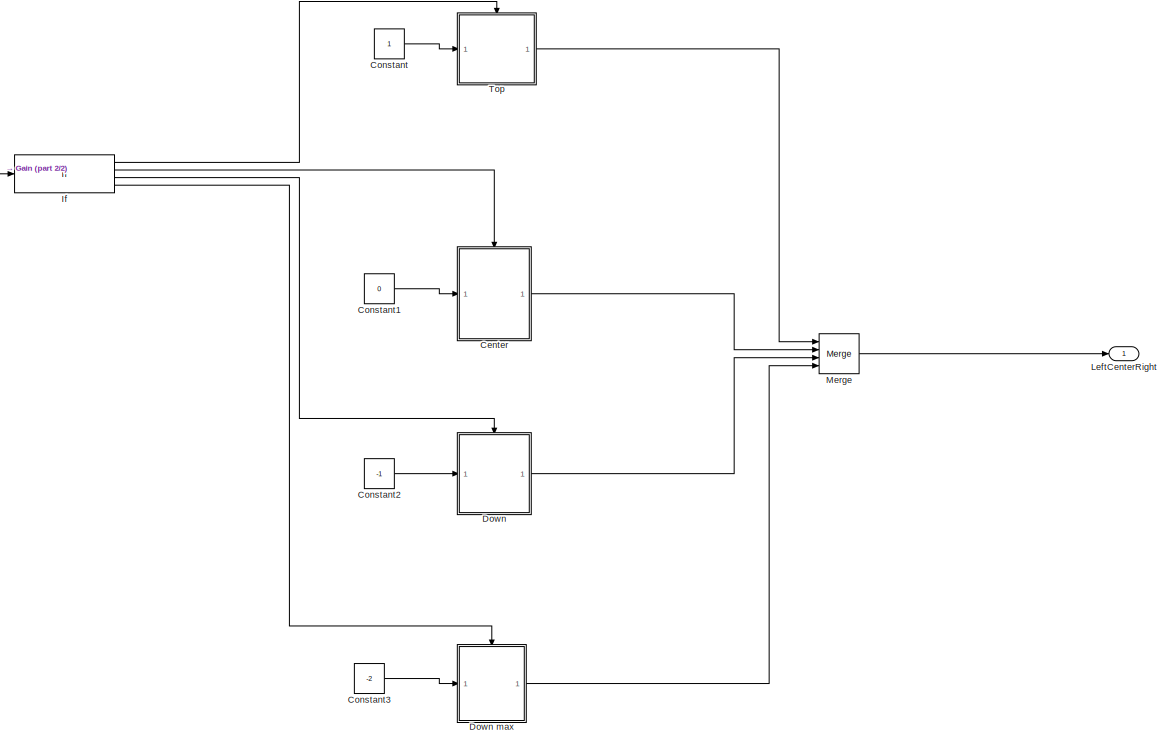
[diagram: root canvas - part 1/2, most of the canvas]
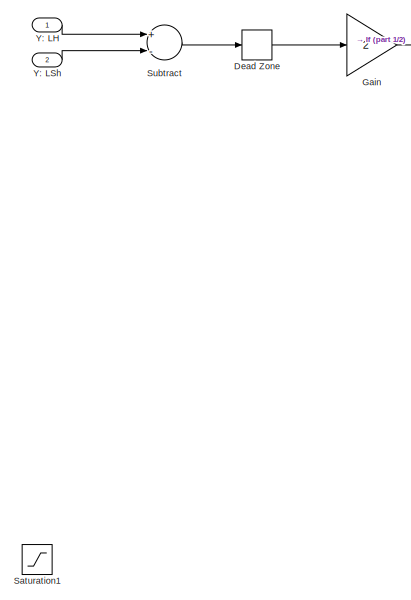
[diagram: root canvas - part 2/2, left side, full height]
MODEL topcenterdown
KIND model
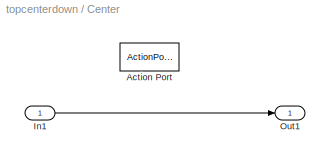
BLOCK [SubSystem] Center
  FunctionWithSeparateData = off
  MaskHideContents = off
  MinAlgLoopOccurrences = off
  Opaque = off
  Ports = [1, 1, 0, 0, 0, 0, 0, 1]
  PropExecContextOutsideSubsystem = off
  RTWSystemCode = Auto
  RequestExecContextInheritance = off
  SID = 13
  TreatAsAtomicUnit = on
BLOCK [ActionPort] Center/Action Port
  ActionType = elseif
  SID = 15
BLOCK [Inport] Center/In1
  IconDisplay = Port number
  SID = 14
BLOCK [Outport] Center/Out1
  IconDisplay = Port number
  SID = 16
BLOCK [Constant] Constant
  SID = 25
BLOCK [Constant] Constant1
  SID = 26
  Value = 0
BLOCK [Constant] Constant2
  SID = 27
  Value = -1
BLOCK [Constant] Constant3
  SID = 28
  Value = -2
BLOCK [DeadZone] Dead Zone
  LowerValue = -0.12
  SID = 3
  UpperValue = 0.12
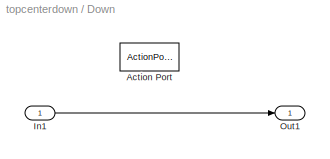
BLOCK [SubSystem] Down
  FunctionWithSeparateData = off
  MaskHideContents = off
  MinAlgLoopOccurrences = off
  Opaque = off
  Ports = [1, 1, 0, 0, 0, 0, 0, 1]
  PropExecContextOutsideSubsystem = off
  RTWSystemCode = Auto
  RequestExecContextInheritance = off
  SID = 17
  TreatAsAtomicUnit = on
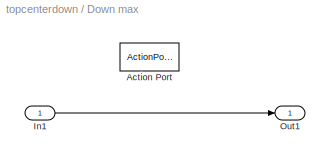
BLOCK [SubSystem] Down max
  FunctionWithSeparateData = off
  MaskHideContents = off
  MinAlgLoopOccurrences = off
  Opaque = off
  Ports = [1, 1, 0, 0, 0, 0, 0, 1]
  PropExecContextOutsideSubsystem = off
  RTWSystemCode = Auto
  RequestExecContextInheritance = off
  SID = 21
  TreatAsAtomicUnit = on
BLOCK [ActionPort] Down max/Action Port
  ActionType = else
  SID = 23
BLOCK [Inport] Down max/In1
  IconDisplay = Port number
  SID = 22
BLOCK [Outport] Down max/Out1
  IconDisplay = Port number
  SID = 24
BLOCK [ActionPort] Down/Action Port
  ActionType = elseif
  SID = 19
BLOCK [Inport] Down/In1
  IconDisplay = Port number
  SID = 18
BLOCK [Outport] Down/Out1
  IconDisplay = Port number
  SID = 20
BLOCK [Gain] Gain
  Gain = 2
  OutDataTypeStr = Inherit: Inherit via internal rule
  ParamDataTypeStr = Inherit: Inherit via internal rule
  SID = 4
  SaturateOnIntegerOverflow = off
BLOCK [If] If
  ElseIfExpressions = u1 ==0, u1> -0.5
  Ports = [1, 4]
  SID = 5
BLOCK [Outport] LeftCenterRight
  IconDisplay = Port number
  SID = 8
BLOCK [Merge] Merge
  Inputs = 4
  Ports = [4, 1]
  SID = 29
BLOCK [Saturate] Saturation1
  InputPortMap = u0
  LowerLimit = -1
  Ports = [1, 1]
  SID = 6
  UpperLimit = 1
BLOCK [Sum] Subtract
  InputSameDT = off
  Inputs = +-
  OutDataTypeStr = Inherit: Inherit via internal rule
  Ports = [2, 1]
  SID = 7
  SaturateOnIntegerOverflow = off
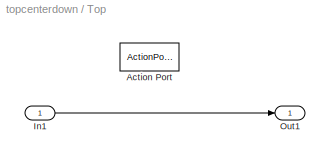
BLOCK [SubSystem] Top
  FunctionWithSeparateData = off
  MaskHideContents = off
  MinAlgLoopOccurrences = off
  Opaque = off
  Ports = [1, 1, 0, 0, 0, 0, 0, 1]
  PropExecContextOutsideSubsystem = off
  RTWSystemCode = Auto
  RequestExecContextInheritance = off
  SID = 9
  TreatAsAtomicUnit = on
BLOCK [ActionPort] Top/Action Port
  ActionType = then
  SID = 11
BLOCK [Inport] Top/In1
  IconDisplay = Port number
  SID = 10
BLOCK [Outport] Top/Out1
  IconDisplay = Port number
  SID = 12
BLOCK [Inport] Y: LH
  IconDisplay = Port number
  SID = 1
BLOCK [Inport] Y: LSh
  IconDisplay = Port number
  Port = 2
  SID = 2
LINE Center/In1:1 -> Center/Out1:1
LINE Center:1 -> Merge:2
LINE Constant1:1 -> Center:1
LINE Constant2:1 -> Down:1
LINE Constant3:1 -> Down max:1
LINE Constant:1 -> Top:1
LINE Dead Zone:1 -> Gain:1
LINE Down max/In1:1 -> Down max/Out1:1
LINE Down max:1 -> Merge:4
LINE Down/In1:1 -> Down/Out1:1
LINE Down:1 -> Merge:3
LINE Gain:1 -> If:1
LINE If:1 -> Top:ifaction
LINE If:2 -> Center:ifaction
LINE If:3 -> Down:ifaction
LINE If:4 -> Down max:ifaction
LINE Merge:1 -> LeftCenterRight:1
LINE Subtract:1 -> Dead Zone:1
LINE Top/In1:1 -> Top/Out1:1
LINE Top:1 -> Merge:1
LINE Y: LH:1 -> Subtract:1
LINE Y: LSh:1 -> Subtract:2
